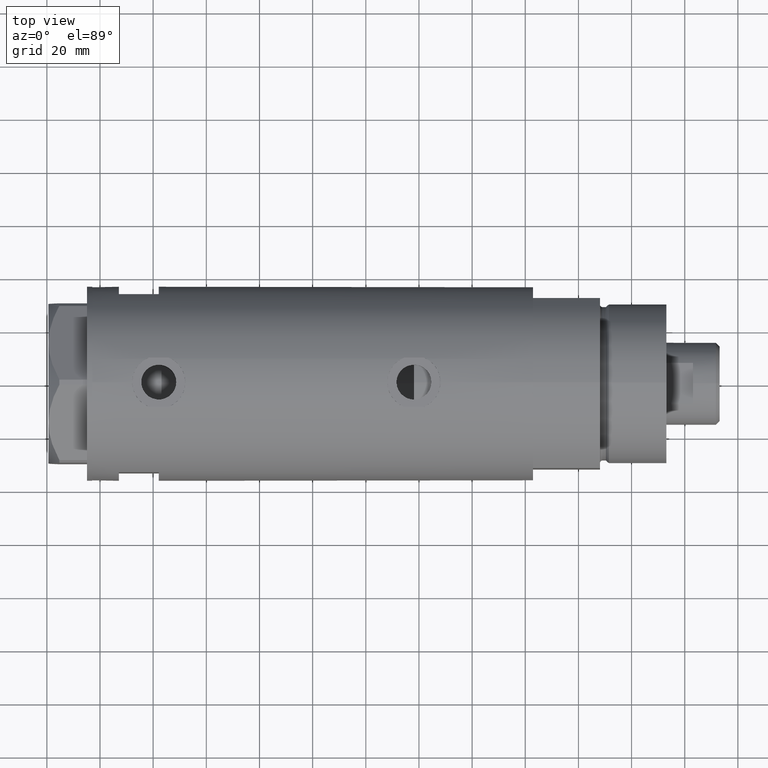
[diagram: clean part render]
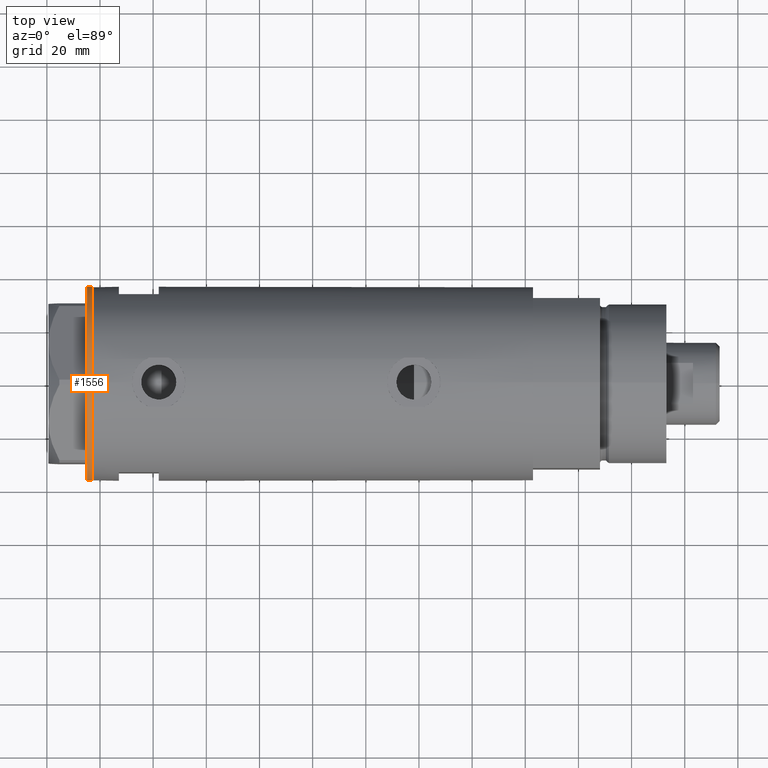
[diagram: same view with one face highlighted and labeled with its STEP entity id]
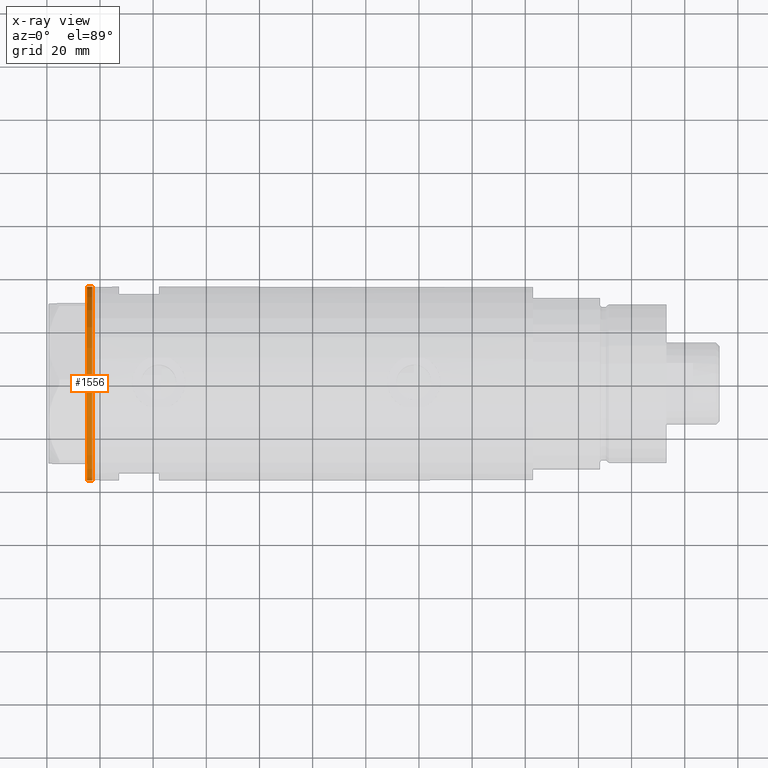
[diagram: x-ray of the same camera — body ghosted, the highlighted face saturated]
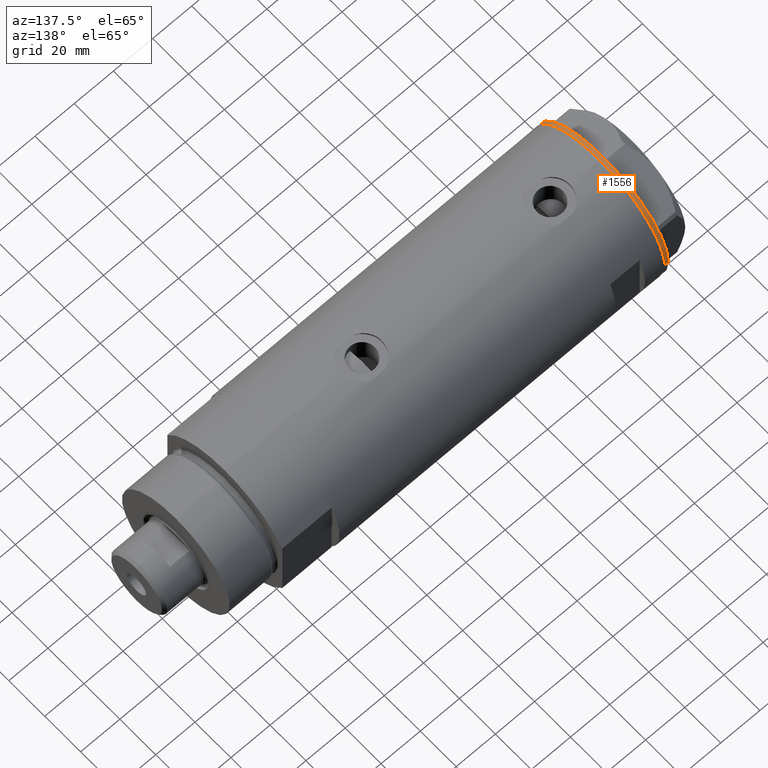
[diagram: same view with one face highlighted and labeled with its STEP entity id]
A machine part, top view. The second image highlights one B-rep face of the part: STEP entity #1556.
The next image is the same camera in x-ray: the body ghosted, the highlighted face saturated — about 0% of this face is hidden behind the body in this view.
A second angle (auxiliary view) of the same face is appended — the face is thin or edge-on in the first view.
In plain terms, the highlighted cylindrical surface (partial cylindrical patch) has radius 36.5 mm, axis along (-1, -0, 0).
Its self-contained STEP definition (entity closure, byte-faithful):
#19 = DIRECTION ( 'NONE',  ( 1.000000000000000000, 0.000000000000000000, 0.000000000000000000 ) ) ;
#69 = VECTOR ( 'NONE', #3367, 1000.000000000000000 ) ;
#169 = ORIENTED_EDGE ( 'NONE', *, *, #1194, .T. ) ;
#292 = CIRCLE ( 'NONE', #4005, 36.50000000000000000 ) ;
#594 = CARTESIAN_POINT ( 'NONE',  ( 36.50000000000000000, 0.000000000000000000, -2.000000000000000000 ) ) ;
#762 = DIRECTION ( 'NONE',  ( -0.000000000000000000, -0.000000000000000000, 1.000000000000000000 ) ) ;
#909 = CARTESIAN_POINT ( 'NONE',  ( 0.000000000000000000, 0.000000000000000000, -2.000000000000000000 ) ) ;
#939 = ORIENTED_EDGE ( 'NONE', *, *, #2511, .F. ) ;
#1033 = VECTOR ( 'NONE', #4248, 1000.000000000000000 ) ;
#1082 = CYLINDRICAL_SURFACE ( 'NONE', #1605, 36.50000000000000000 ) ;
#1136 = FACE_OUTER_BOUND ( 'NONE', #3630, .T. ) ;
#1194 = EDGE_CURVE ( 'NONE', #3754, #4442, #2385, .T. ) ;
#1428 = ORIENTED_EDGE ( 'NONE', *, *, #3253, .T. ) ;
#1464 = DIRECTION ( 'NONE',  ( 0.000000000000000000, 0.000000000000000000, -1.000000000000000000 ) ) ;
#1556 = ADVANCED_FACE ( 'NONE', ( #1136 ), #1082, .T. ) ;
#1605 = AXIS2_PLACEMENT_3D ( 'NONE', #2422, #762, #19 ) ;
#1637 = ORIENTED_EDGE ( 'NONE', *, *, #1827, .F. ) ;
#1657 = DIRECTION ( 'NONE',  ( -1.000000000000000000, 0.000000000000000000, 0.000000000000000000 ) ) ;
#1827 = EDGE_CURVE ( 'NONE', #4313, #4442, #4081, .T. ) ;
#2100 = VERTEX_POINT ( 'NONE', #594 ) ;
#2290 = DIRECTION ( 'NONE',  ( 0.000000000000000000, 0.000000000000000000, -1.000000000000000000 ) ) ;
#2300 = CARTESIAN_POINT ( 'NONE',  ( -36.50000000000000000, 4.469960816887838430E-15, -2.000000000000000000 ) ) ;
#2385 = CIRCLE ( 'NONE', #2670, 36.50000000000000000 ) ;
#2422 = CARTESIAN_POINT ( 'NONE',  ( 0.000000000000000000, 0.000000000000000000, -2.000000000000000000 ) ) ;
#2445 = LINE ( 'NONE', #2875, #1033 ) ;
#2511 = EDGE_CURVE ( 'NONE', #2100, #4313, #292, .T. ) ;
#2670 = AXIS2_PLACEMENT_3D ( 'NONE', #3175, #1464, #4350 ) ;
#2790 = CARTESIAN_POINT ( 'NONE',  ( -36.50000000000000000, 4.469960816887838430E-15, 0.000000000000000000 ) ) ;
#2875 = CARTESIAN_POINT ( 'NONE',  ( 36.50000000000000000, 0.000000000000000000, -2.000000000000000000 ) ) ;
#3175 = CARTESIAN_POINT ( 'NONE',  ( 0.000000000000000000, 0.000000000000000000, 0.000000000000000000 ) ) ;
#3253 = EDGE_CURVE ( 'NONE', #2100, #3754, #2445, .T. ) ;
#3301 = CARTESIAN_POINT ( 'NONE',  ( 36.50000000000000000, 0.000000000000000000, 0.000000000000000000 ) ) ;
#3367 = DIRECTION ( 'NONE',  ( -0.000000000000000000, -0.000000000000000000, 1.000000000000000000 ) ) ;
#3630 = EDGE_LOOP ( 'NONE', ( #1637, #939, #1428, #169 ) ) ;
#3663 = CARTESIAN_POINT ( 'NONE',  ( -36.50000000000000000, 4.469960816887838430E-15, -2.000000000000000000 ) ) ;
#3754 = VERTEX_POINT ( 'NONE', #3301 ) ;
#4005 = AXIS2_PLACEMENT_3D ( 'NONE', #909, #2290, #1657 ) ;
#4081 = LINE ( 'NONE', #2300, #69 ) ;
#4248 = DIRECTION ( 'NONE',  ( -0.000000000000000000, -0.000000000000000000, 1.000000000000000000 ) ) ;
#4313 = VERTEX_POINT ( 'NONE', #3663 ) ;
#4350 = DIRECTION ( 'NONE',  ( -1.000000000000000000, 0.000000000000000000, 0.000000000000000000 ) ) ;
#4442 = VERTEX_POINT ( 'NONE', #2790 ) ;